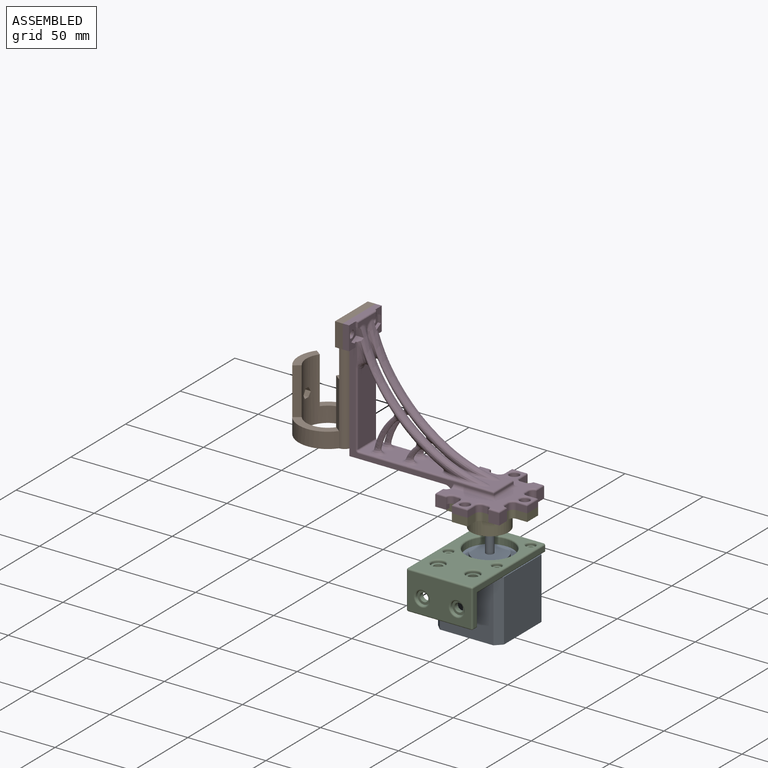
[diagram: assembled view]
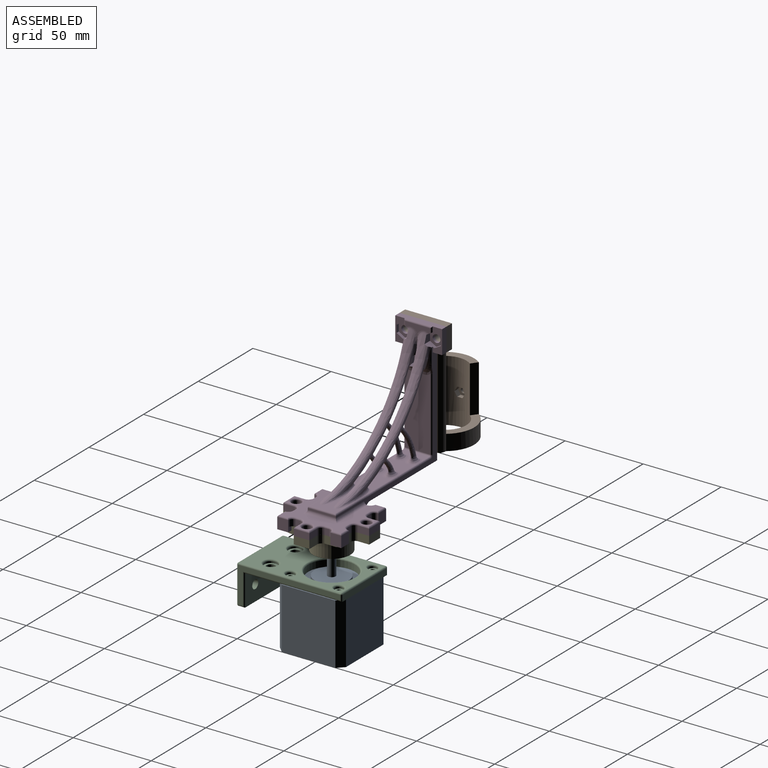
[diagram: assembled view, second angle]
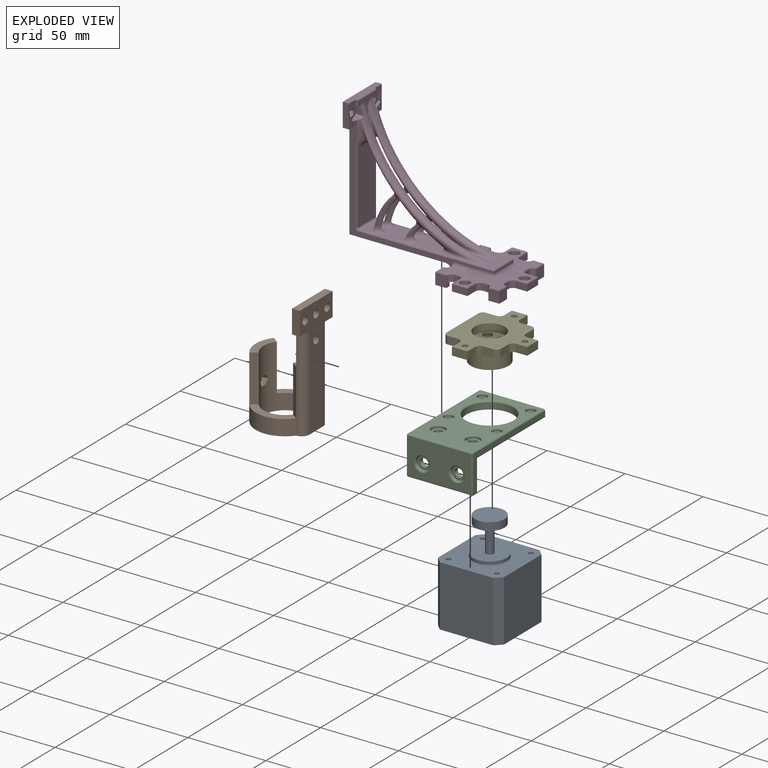
[diagram: exploded view]
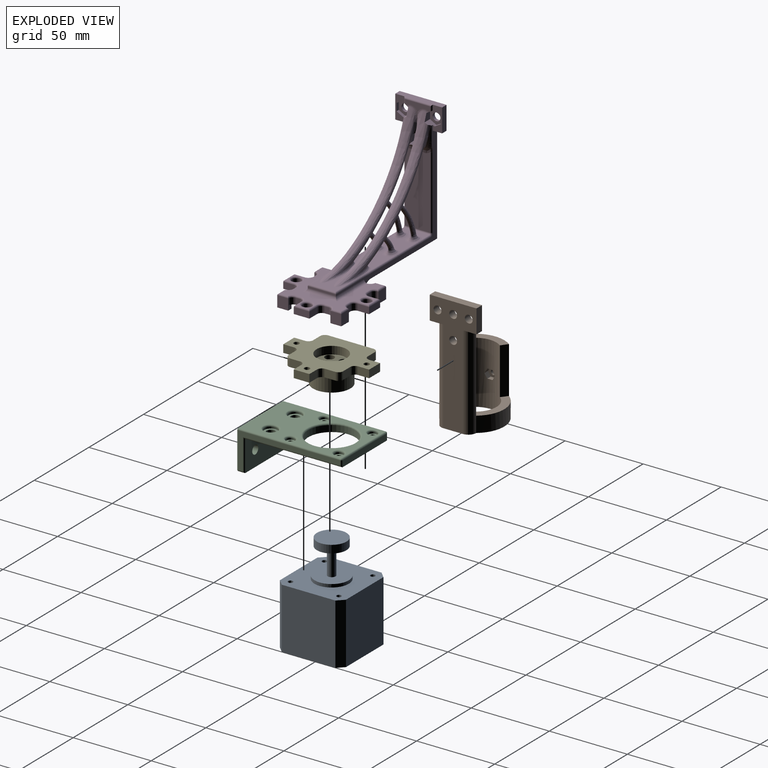
[diagram: exploded view, second angle]
ASSEMBLY  parts=5 mates=4
PART A: 24 faces, bbox 42.3x42.3x63 mm
  f0: cylinder r=2.5mm len=17mm, axis (0,0,-1), area 267mm2, adj f12,f14
  f1: plane 39x34.3mm, normal (0,-1,0), area 1337.7mm2, adj f5,f6,f9,f10
  f2: plane 39x34.3mm, normal (1,0,0), area 1337.7mm2, adj f5,f6,f8,f9
  f3: plane 39x34.3mm, normal (0,1,0), area 1337.7mm2, adj f5,f6,f7,f8
  f4: plane 39x34.3mm, normal (-1,0,0), area 1337.7mm2, adj f5,f6,f7,f10
  f5: plane 42.3x42.3mm, normal (0,0,1), area 1348.9mm2, adj f1,f2,f3,f4,f7,f8,f9,f10
  f6: plane 42.3x42.3mm, normal (0,0,-1), area 1757.3mm2, adj f1,f2,f3,f4,f7,f8,f9,f10
  f7: plane 39x4mm, normal (-0.71,0.71,0), area 220.6mm2, adj f3,f4,f5,f6
  f8: plane 39x4mm, normal (0.71,0.71,0), area 220.6mm2, adj f2,f3,f5,f6
  f9: plane 39x4mm, normal (0.71,-0.71,0), area 220.6mm2, adj f1,f2,f5,f6
  f10: plane 39x4mm, normal (-0.71,-0.71,0), area 220.6mm2, adj f1,f4,f5,f6
  f11: cylinder r=11mm len=22mm, axis (0,0,-1), area 138.2mm2, adj f5,f12
  f12: plane 22x22mm, normal (0,0,1), area 360.5mm2, adj f0,f11
  f13: cylinder r=9.5mm len=19mm, axis (0,0,1), area 298.5mm2, adj f14,f15
  f14: plane 19x19mm, normal (0,0,-1), area 263.9mm2, adj f0,f13
  f15: plane 19x19mm, normal (0,0,1), area 283.5mm2, adj f13
  f16: cylinder r=1.5mm len=4.5mm, axis (0,0,1), area 42.4mm2, adj f5,f17
  f17: plane 3x3mm, normal (0,0,1), area 7.1mm2, adj f16
  f18: cylinder r=1.5mm len=4.5mm, axis (0,0,1), area 42.4mm2, adj f5,f19
  f19: plane 3x3mm, normal (0,0,1), area 7.1mm2, adj f18
  f20: cylinder r=1.5mm len=4.5mm, axis (0,0,1), area 42.4mm2, adj f5,f21
  f21: plane 3x3mm, normal (0,0,1), area 7.1mm2, adj f20
  f22: cylinder r=1.5mm len=4.5mm, axis (0,0,1), area 42.4mm2, adj f5,f23
  f23: plane 3x3mm, normal (0,0,1), area 7.1mm2, adj f22
PART B: 32 faces, bbox 38.8x75x37.5 mm
  f0: cylinder r=18.75mm len=40mm, axis (0,1,0), area 1652.7mm2, adj f3,f4,f5,f7,f9,f10,f11,f30
  f1: plane 22.5x4mm, normal (0,-1,0), area 47.1mm2, adj f2,f6,f8,f28
  f2: cylinder r=13.75mm len=40mm, axis (0,1,0), area 1896.4mm2, adj f1,f3,f4,f5,f6,f7,f8,f9
  f3: plane 22.5x7.75mm, normal (0,-1,0), area 104.6mm2, adj f0,f2,f5,f9
  f4: plane 38.75x37.5mm, normal (0,1,0), area 554.8mm2, adj f0,f2,f29,f30,f31
  f5: plane 30x4mm, normal (0.6,0,-0.8), area 150mm2, adj f0,f2,f3,f7
  f6: plane 30x4mm, normal (-0.6,0,-0.8), area 150mm2, adj f1,f2,f7,f31
  f7: plane 30x10.5mm, normal (0,-1,0), area 150.7mm2, adj f0,f2,f5,f6
  f8: plane 30x4mm, normal (-0.6,0,0.8), area 150mm2, adj f1,f2,f10,f30
  f9: plane 30x4mm, normal (0.6,0,0.8), area 150mm2, adj f0,f2,f3,f10
  f10: plane 30x10.5mm, normal (0,-1,0), area 150.7mm2, adj f0,f2,f8,f9
  f11: cylinder r=1.6mm len=3.2mm, axis (1,0,0), area 19.8mm2, adj f0,f18
  f12: plane 3.43x2.92mm, normal (0,0.5,0.87), area 10.9mm2, adj f2,f13,f17,f18
  f13: plane 3.43x2.92mm, normal (0,-0.5,0.87), area 10.9mm2, adj f2,f12,f14,f18
  f14: plane 3.35x3.1mm, normal (0,-1,0), area 10.2mm2, adj f2,f13,f15,f18
  f15: plane 3.43x2.92mm, normal (0,-0.5,-0.87), area 10.9mm2, adj f2,f14,f16,f18
  f16: plane 3.43x2.92mm, normal (0,0.5,-0.87), area 10.9mm2, adj f2,f15,f17,f18
  f17: plane 3.35x3.1mm, normal (0,1,0), area 10.2mm2, adj f2,f12,f16,f18
  f18: plane 6.7x5.8mm, normal (1,0,0), area 21.1mm2, adj f11,f12,f13,f14,f15,f16,f17
  f19: plane 30x5mm, normal (0,-1,0), area 150mm2, adj f20,f27,f28,f29
  f20: plane 15x5mm, normal (0,0,-1), area 75mm2, adj f19,f21,f28,f29
  f21: plane 8.75x5mm, normal (0,1,0), area 24.1mm2, adj f20,f28,f29,f31
  f22: plane 8.75x5mm, normal (0,1,0), area 24.1mm2, adj f27,f28,f29,f30
  f23: cylinder r=2.5mm len=5mm, axis (1,0,0), area 78.5mm2, adj f28,f29
  f24: cylinder r=2.5mm len=5mm, axis (1,0,0), area 78.5mm2, adj f28,f29
  f25: cylinder r=2.5mm len=5mm, axis (1,0,0), area 78.5mm2, adj f28,f29
  f26: cylinder r=2.5mm len=5mm, axis (1,0,0), area 78.5mm2, adj f28,f29
  f27: plane 15x5mm, normal (0,0,1), area 75mm2, adj f19,f22,f28,f29
  f28: plane 35x30mm, normal (-1,0,0), area 821.5mm2, adj f1,f19,f20,f21,f22,f23,f24,f25
  f29: plane 75x30mm, normal (1,0,0), area 1121.5mm2, adj f4,f19,f20,f21,f22,f23,f24,f25
  f30: cylinder r=5mm len=60mm, axis (0,-1,0), area 471.2mm2, adj f0,f4,f8,f22,f28,f29
  f31: cylinder r=5mm len=60mm, axis (0,1,0), area 471.2mm2, adj f0,f4,f6,f21,f28,f29
PART C: 63 faces, bbox 42.3x67.3x25 mm
  f0: cylinder r=2.75mm len=5.5mm, axis (0,-1,0), area 51.8mm2, adj f15,f32
  f1: cylinder r=2.75mm len=5.5mm, axis (0,-1,0), area 51.8mm2, adj f15,f30
  f2: cylinder r=1.7mm len=3.4mm, axis (0,0,-1), area 32mm2, adj f9,f18
  f3: cylinder r=1.7mm len=3.4mm, axis (0,0,-1), area 32mm2, adj f9,f28
  f4: cylinder r=1.7mm len=3.4mm, axis (0,0,-1), area 32mm2, adj f9,f20
  f5: cylinder r=2.75mm len=5.5mm, axis (0,0,-1), area 51.8mm2, adj f9,f24
  f6: cylinder r=2.75mm len=5.5mm, axis (0,0,-1), area 51.8mm2, adj f9,f26
  f7: cylinder r=1.7mm len=3.4mm, axis (0,0,-1), area 32mm2, adj f9,f22
  f8: plane 65.3x40.3mm, normal (0,0,1), area 1467.9mm2, adj f35,f36,f37,f38,f39,f40,f45,f46
  f9: plane 62.3x40.3mm, normal (0,0,-1), area 1720mm2, adj f2,f3,f4,f5,f6,f7,f13,f14
  f10: plane 65.3x23mm, normal (-1,0,0), area 255.9mm2, adj f53,f54,f58,f59,f60,f61
  f11: plane 40.3x23mm, normal (0,-1,0), area 753.7mm2, adj f33,f34,f46,f47,f54,f55
  f12: plane 65.3x23mm, normal (1,0,0), area 255.9mm2, adj f41,f43,f44,f45,f47,f48
  f13: cylinder r=15mm len=30mm, axis (0,0,-1), area 377mm2, adj f9,f62
  f14: plane 40.3x4mm, normal (0,1,0), area 161.2mm2, adj f9,f44,f52,f58
  f15: plane 40.3x20mm, normal (0,1,0), area 758.5mm2, adj f0,f1,f9,f16,f43,f61
  f16: plane 40.3x4mm, normal (0,0,-1), area 161.2mm2, adj f15,f48,f55,f59
  f17: cylinder r=2.85mm len=5.7mm, axis (0,0,1), area 17.9mm2, adj f18,f40
  f18: plane 5.7x5.7mm, normal (0,0,1), area 16.4mm2, adj f2,f17
  f19: cylinder r=2.85mm len=5.7mm, axis (0,0,1), area 17.9mm2, adj f20,f35
  f20: plane 5.7x5.7mm, normal (0,0,1), area 16.4mm2, adj f4,f19
  f21: cylinder r=2.85mm len=5.7mm, axis (0,0,1), area 17.9mm2, adj f22,f36
  f22: plane 5.7x5.7mm, normal (0,0,1), area 16.4mm2, adj f7,f21
  f23: cylinder r=4.25mm len=8.5mm, axis (0,0,1), area 26.7mm2, adj f24,f37
  f24: plane 8.5x8.5mm, normal (0,0,1), area 33mm2, adj f5,f23
  f25: cylinder r=4.25mm len=8.5mm, axis (0,0,1), area 26.7mm2, adj f26,f38
  f26: plane 8.5x8.5mm, normal (0,0,1), area 33mm2, adj f6,f25
  f27: cylinder r=2.85mm len=5.7mm, axis (0,0,1), area 17.9mm2, adj f28,f39
  f28: plane 5.7x5.7mm, normal (0,0,1), area 16.4mm2, adj f3,f27
  f29: cylinder r=4.25mm len=8.5mm, axis (0,-1,0), area 26.7mm2, adj f30,f34
  f30: plane 8.5x8.5mm, normal (0,-1,0), area 33mm2, adj f1,f29
  f31: cylinder r=4.25mm len=8.5mm, axis (0,-1,0), area 26.7mm2, adj f32,f33
  f32: plane 8.5x8.5mm, normal (0,-1,0), area 33mm2, adj f0,f31
  f33: torus R=5.25mm, axis (0,1,0), area 45.5mm2, adj f11,f31
  f34: torus R=5.25mm, axis (0,1,0), area 45.5mm2, adj f11,f29
  f35: torus R=3.85mm, axis (0,0,1), area 31.7mm2, adj f8,f19
  f36: torus R=3.85mm, axis (0,0,1), area 31.7mm2, adj f8,f21
  f37: torus R=5.25mm, axis (0,0,1), area 45.5mm2, adj f8,f23
  f38: torus R=5.25mm, axis (0,0,1), area 45.5mm2, adj f8,f25
  f39: torus R=3.85mm, axis (0,0,1), area 31.7mm2, adj f8,f27
  f40: torus R=3.85mm, axis (0,0,1), area 31.7mm2, adj f8,f17
  f41: cylinder r=1mm len=63.3mm, axis (0,1,0), area 97.9mm2, adj f9,f12,f43,f44
  f42: sphere r=1mm, area 1.6mm2, adj f45,f46,f47
  f43: cylinder r=1mm len=21mm, axis (0,0,-1), area 31.4mm2, adj f12,f15,f41,f48
  f44: cylinder r=1mm len=4mm, axis (0,0,-1), area 5.7mm2, adj f12,f14,f41,f49
  f45: cylinder r=1mm len=65.3mm, axis (0,-1,0), area 102.6mm2, adj f8,f12,f42,f49
  f46: cylinder r=1mm len=40.3mm, axis (-1,0,0), area 63.3mm2, adj f8,f11,f42,f50
  f47: cylinder r=1mm len=23mm, axis (0,0,1), area 36.1mm2, adj f11,f12,f42,f51
  f48: cylinder r=1mm len=4mm, axis (0,1,0), area 5.7mm2, adj f12,f16,f43,f51
  f49: sphere r=1mm, area 1.6mm2, adj f44,f45,f52
  f50: sphere r=1mm, area 1.6mm2, adj f46,f53,f54
  f51: sphere r=1mm, area 1.6mm2, adj f47,f48,f55
  f52: cylinder r=1mm len=40.3mm, axis (1,0,0), area 63.3mm2, adj f8,f14,f49,f56
  f53: cylinder r=1mm len=65.3mm, axis (0,1,0), area 102.6mm2, adj f8,f10,f50,f56
  f54: cylinder r=1mm len=23mm, axis (0,0,-1), area 36.1mm2, adj f10,f11,f50,f57
  f55: cylinder r=1mm len=40.3mm, axis (1,0,0), area 63.3mm2, adj f11,f16,f51,f57
  f56: sphere r=1mm, area 1.6mm2, adj f52,f53,f58
  f57: sphere r=1mm, area 1.6mm2, adj f54,f55,f59
  f58: cylinder r=1mm len=4mm, axis (0,0,1), area 5.7mm2, adj f10,f14,f56,f60
  f59: cylinder r=1mm len=4mm, axis (0,-1,0), area 5.7mm2, adj f10,f16,f57,f61
  f60: cylinder r=1mm len=63.3mm, axis (0,-1,0), area 97.9mm2, adj f9,f10,f58,f61
  f61: cylinder r=1mm len=21mm, axis (0,0,1), area 31.4mm2, adj f10,f15,f59,f60
  f62: torus R=16mm, axis (0,0,1), area 151.6mm2, adj f8,f13
PART D: 220 faces, bbox 111.8x55.9x87.7 mm
  f0: plane 4x4mm, normal (0,0,1), area 3.4mm2, adj f196,f197,f217
  f1: plane 45x42mm, normal (0,0,1), area 684.3mm2, adj f104,f105,f106,f178,f179,f180,f181,f182
  f2: plane 4x4mm, normal (0,0,1), area 3.4mm2, adj f206,f207,f219
  f3: plane 4x4mm, normal (0,0,1), area 3.4mm2, adj f207,f208,f219
  f4: plane 4x4mm, normal (0,0,1), area 3.4mm2, adj f195,f196,f217
  f5: plane 4x4mm, normal (0,0,1), area 3.4mm2, adj f185,f186,f218
  f6: plane 4.76x1.5mm, normal (-1,0,0), area 6.5mm2, adj f7,f35,f85,f216
  f7: plane 92.93x72.6mm, normal (0,-1,0), area 489.7mm2, adj f6,f10,f17,f19,f102,f103,f104,f125
  f8: bspline ~82.12x71mm, area 1417.8mm2, adj f9,f10,f24,f25,f28,f29,f109,f116
  f9: bspline ~25.26x11.43mm, area 93.3mm2, adj f8,f10,f11,f12,f13,f125,f152,f154
  f10: bspline ~16.78x7.87mm, area 58.3mm2, adj f7,f8,f9,f125,f165
  f11: plane 47.05x16.01mm, normal (1,0,0), area 734.1mm2, adj f9,f13,f124,f128,f129,f152,f159
  f12: plane 16x5.11mm, normal (1,0,0), area 48.3mm2, adj f9,f13,f14,f145,f146,f164,f174
  f13: bspline ~25.26x11.43mm, area 93.4mm2, adj f9,f11,f12,f20,f108,f123,f153,f156
  f14: cylinder r=1mm len=3.86mm, axis (0,0,-1), area 4.8mm2, adj f12,f17,f145,f164
  f15: cylinder r=2.5mm len=5mm, axis (-1,0,0), area 31.4mm2, adj f19,f168
  f16: cylinder r=2.5mm len=5mm, axis (-1,0,0), area 31.4mm2, adj f19,f167
  f17: plane 15x6mm, normal (1,0,0), area 51.2mm2, adj f7,f14,f107,f150,f151,f161,f162,f163
  f18: cylinder r=2.5mm len=5mm, axis (-1,0,0), area 31.4mm2, adj f19,f157
  f19: plane 79x30mm, normal (-1,0,0), area 1543.1mm2, adj f7,f15,f16,f18,f21,f102,f107,f147
  f20: bspline ~16.5x7.9mm, area 58.3mm2, adj f13,f21,f108,f123,f173
  f21: plane 92.93x72.6mm, normal (0,1,0), area 489.7mm2, adj f19,f20,f59,f102,f103,f106,f123,f124
  f22: bspline ~4.53x2.67mm, area 6mm2, adj f23,f108,f111,f122
  f23: bspline ~4.53x2.67mm, area 5.9mm2, adj f22,f108,f111,f122
  f24: bspline ~4.53x2.67mm, area 6mm2, adj f8,f25,f113,f118
  f25: bspline ~4.53x2.67mm, area 5.9mm2, adj f8,f24,f113,f118
  f26: bspline ~6.12x3.3mm, area 3.2mm2, adj f27,f30,f108,f110
  f27: bspline ~6.12x3.3mm, area 3.2mm2, adj f26,f30,f108,f110
  f28: bspline ~6.12x3.3mm, area 3.2mm2, adj f8,f29,f30,f109
  f29: bspline ~6.12x3.3mm, area 3.2mm2, adj f8,f28,f30,f109
  f30: plane 85.63x16.02mm, normal (0,0,1), area 712.2mm2, adj f26,f27,f28,f29,f109,f110,f115,f117
  f31: plane 4x4mm, normal (0,0,1), area 3.4mm2, adj f184,f185,f218
  f32: cylinder r=1.75mm len=3.5mm, axis (0,0,-1), area 11mm2, adj f35,f101
  f33: cylinder r=1.75mm len=3.5mm, axis (0,0,-1), area 11mm2, adj f35,f96
  f34: cylinder r=1.75mm len=3.5mm, axis (0,0,-1), area 11mm2, adj f35,f98
  f35: plane 55x48mm, normal (0,0,-1), area 1236.7mm2, adj f6,f32,f33,f34,f36,f37,f40,f41
  f36: plane 4x2.5mm, normal (0,-1,0), area 10mm2, adj f35,f88,f89,f204
  f37: plane 3x3mm, normal (-1,0,0), area 9mm2, adj f35,f38,f72,f73
  f38: plane 7x7mm, normal (0,-1,0), area 49mm2, adj f37,f39,f73,f89,f202
  f39: plane 7x7mm, normal (1,0,0), area 49mm2, adj f38,f40,f73,f90,f201
  f40: plane 3x3mm, normal (0,1,0), area 9mm2, adj f35,f39,f71,f73
  f41: plane 4x2.5mm, normal (1,0,0), area 10mm2, adj f35,f90,f91,f199
  f42: plane 7x4mm, normal (0,-1,0), area 28mm2, adj f35,f43,f91,f197
  f43: plane 10x4mm, normal (1,0,0), area 40mm2, adj f35,f42,f44,f196
  f44: plane 7x4mm, normal (0,1,0), area 28mm2, adj f35,f43,f92,f195
  f45: plane 4x2.5mm, normal (1,0,0), area 10mm2, adj f35,f92,f93,f193
  f46: plane 3x3mm, normal (0,-1,0), area 9mm2, adj f35,f47,f69,f70
  f47: plane 7x7mm, normal (1,0,0), area 49mm2, adj f46,f48,f70,f93,f191
  f48: plane 7x7mm, normal (0,1,0), area 49mm2, adj f47,f49,f70,f94,f190
  f49: plane 3x3mm, normal (-1,0,0), area 9mm2, adj f35,f48,f68,f70
  f50: plane 4x2.5mm, normal (0,1,0), area 10mm2, adj f35,f94,f95,f188
  f51: plane 7x4mm, normal (1,0,0), area 28mm2, adj f35,f52,f95,f186
  f52: plane 10x4mm, normal (0,1,0), area 40mm2, adj f35,f51,f53,f185
  f53: plane 7x4mm, normal (-1,0,0), area 28mm2, adj f35,f52,f82,f184
  f54: plane 4x2.5mm, normal (0,1,0), area 10mm2, adj f35,f82,f83,f182
  f55: plane 3x3mm, normal (1,0,0), area 9mm2, adj f35,f56,f74,f76
  f56: plane 7x7mm, normal (0,1,0), area 49mm2, adj f55,f57,f76,f83,f180
  f57: plane 7x7mm, normal (-1,0,0), area 49mm2, adj f56,f58,f76,f84,f179
  f58: plane 3x3mm, normal (0,-1,0), area 9mm2, adj f35,f57,f75,f76
  f59: plane 4.76x1.5mm, normal (-1,0,0), area 6.5mm2, adj f21,f35,f84,f176
  f60: plane 3x3mm, normal (0,1,0), area 9mm2, adj f35,f61,f77,f79
  f61: plane 7x7mm, normal (-1,0,0), area 49mm2, adj f60,f62,f79,f85,f213
  f62: plane 7x7mm, normal (0,-1,0), area 49mm2, adj f61,f63,f79,f86,f212
  f63: plane 3x3mm, normal (1,0,0), area 9mm2, adj f35,f62,f78,f79
  f64: plane 4x2.5mm, normal (0,-1,0), area 10mm2, adj f35,f86,f87,f210
  f65: plane 7x4mm, normal (-1,0,0), area 28mm2, adj f35,f66,f87,f208
  f66: plane 10x4mm, normal (0,-1,0), area 40mm2, adj f35,f65,f67,f207
  f67: plane 7x4mm, normal (1,0,0), area 28mm2, adj f35,f66,f88,f206
  f68: plane 4x3mm, normal (0,-1,0), area 12mm2, adj f35,f49,f69,f70
  f69: plane 4x3mm, normal (-1,0,0), area 12mm2, adj f35,f46,f68,f70
  f70: plane 7x7mm, normal (0,0,-1), area 33mm2, adj f46,f47,f48,f49,f68,f69
  f71: plane 4x3mm, normal (-1,0,0), area 12mm2, adj f35,f40,f72,f73
  f72: plane 4x3mm, normal (0,1,0), area 12mm2, adj f35,f37,f71,f73
  f73: plane 7x7mm, normal (0,0,-1), area 33mm2, adj f37,f38,f39,f40,f71,f72
  f74: plane 4x3mm, normal (0,-1,0), area 12mm2, adj f35,f55,f75,f76
  f75: plane 4x3mm, normal (1,0,0), area 12mm2, adj f35,f58,f74,f76
  f76: plane 7x7mm, normal (0,0,-1), area 33mm2, adj f55,f56,f57,f58,f74,f75
  f77: plane 4x3mm, normal (1,0,0), area 12mm2, adj f35,f60,f78,f79
  f78: plane 4x3mm, normal (0,1,0), area 12mm2, adj f35,f63,f77,f79
  f79: plane 7x7mm, normal (0,0,-1), area 33mm2, adj f60,f61,f62,f63,f77,f78
  f80: cylinder r=9.55mm len=19.1mm, axis (0,0,1), area 180mm2, adj f35,f81
  f81: plane 19.1x19.1mm, normal (0,0,-1), area 286.5mm2, adj f80
  f82: cylinder r=3mm len=4mm, axis (0,0,-1), area 18.8mm2, adj f35,f53,f54,f183
  f83: cylinder r=3mm len=4mm, axis (0,0,1), area 18.8mm2, adj f35,f54,f56,f181
  f84: cylinder r=3mm len=4.04mm, axis (0,0,-1), area 18.9mm2, adj f35,f57,f59,f177,f178
  f85: cylinder r=3mm len=4.04mm, axis (0,0,1), area 18.9mm2, adj f6,f35,f61,f214,f215
  f86: cylinder r=3mm len=4mm, axis (0,0,1), area 18.8mm2, adj f35,f62,f64,f211
  f87: cylinder r=3mm len=4mm, axis (0,0,-1), area 18.8mm2, adj f35,f64,f65,f209
  f88: cylinder r=3mm len=4mm, axis (0,0,1), area 18.8mm2, adj f35,f36,f67,f205
  f89: cylinder r=3mm len=4mm, axis (0,0,-1), area 18.8mm2, adj f35,f36,f38,f203
  f90: cylinder r=3mm len=4mm, axis (0,0,1), area 18.8mm2, adj f35,f39,f41,f200
  f91: cylinder r=3mm len=4mm, axis (0,0,1), area 18.8mm2, adj f35,f41,f42,f198
  f92: cylinder r=3mm len=4mm, axis (0,0,1), area 18.8mm2, adj f35,f44,f45,f194
  f93: cylinder r=3mm len=4mm, axis (0,0,-1), area 18.8mm2, adj f35,f45,f47,f192
  f94: cylinder r=3mm len=4mm, axis (0,0,-1), area 18.8mm2, adj f35,f48,f50,f189
  f95: cylinder r=3mm len=4mm, axis (0,0,1), area 18.8mm2, adj f35,f50,f51,f187
  f96: plane 6x6mm, normal (0,0,1), area 18.7mm2, adj f33,f97
  f97: cylinder r=3mm len=6mm, axis (0,0,1), area 56.5mm2, adj f96,f217
  f98: plane 6x6mm, normal (0,0,1), area 18.7mm2, adj f34,f99
  f99: cylinder r=3mm len=6mm, axis (0,0,1), area 56.5mm2, adj f98,f218
  f100: cylinder r=3mm len=6mm, axis (0,0,1), area 56.5mm2, adj f101,f219
  f101: plane 6x6mm, normal (0,0,1), area 18.7mm2, adj f32,f100
  f102: plane 61.12x18mm, normal (0,0,-1), area 1100.2mm2, adj f7,f19,f21,f175
  f103: plane 18x1mm, normal (1,0,0), area 18mm2, adj f7,f21,f105,f142
  f104: cylinder r=2mm len=27.53mm, axis (1,0,0), area 82.4mm2, adj f1,f7,f105,f215,f216
  f105: cylinder r=2mm len=22mm, axis (0,1,0), area 62.8mm2, adj f1,f103,f104,f106
  f106: cylinder r=2mm len=27.53mm, axis (-1,0,0), area 82.4mm2, adj f1,f21,f105,f176,f177
  f107: plane 30x4mm, normal (0,0,1), area 120mm2, adj f17,f19,f145,f147,f149,f151
  f108: bspline ~82.12x71mm, area 1417.8mm2, adj f13,f20,f22,f23,f26,f27,f110,f120
  f109: bspline ~31.06x8.58mm, area 128.6mm2, adj f8,f28,f29,f30,f143
  f110: bspline ~31.06x8.58mm, area 128.6mm2, adj f26,f27,f30,f108,f138
  f111: bspline ~14.84x13.18mm, area 72.8mm2, adj f22,f23,f121,f122
  f112: bspline ~21.47x16.02mm, area 207.2mm2, adj f119,f120
  f113: bspline ~14.84x13.18mm, area 72.8mm2, adj f24,f25,f117,f118
  f114: bspline ~21.47x16.02mm, area 207.2mm2, adj f115,f116
  f115: bspline ~10.16x8mm, area 79.2mm2, adj f30,f114,f135
  f116: bspline ~6.48x6.08mm, area 44mm2, adj f8,f114
  f117: bspline ~10.64x8.01mm, area 82mm2, adj f30,f113,f139
  f118: bspline ~5.94x5.07mm, area 28.6mm2, adj f8,f24,f25,f113
  f119: bspline ~10.16x8mm, area 79.2mm2, adj f30,f112,f130
  f120: bspline ~6.48x6.08mm, area 44mm2, adj f108,f112
  f121: bspline ~10.64x8.01mm, area 82mm2, adj f30,f111,f134
  f122: bspline ~5.94x5.07mm, area 28.6mm2, adj f22,f23,f108,f111
  f123: bspline ~7.66x1.99mm, area 4.8mm2, adj f13,f20,f21,f124
  f124: cylinder r=1mm len=46.65mm, axis (0,0,-1), area 73.3mm2, adj f11,f21,f123,f126
  f125: bspline ~7.66x1.99mm, area 4.8mm2, adj f7,f9,f10,f128
  f126: torus R=2mm, axis (0,1,0), area 3.4mm2, adj f21,f124,f127,f129
  f127: cylinder r=1mm len=6.64mm, axis (1,0,0), area 10.4mm2, adj f21,f30,f126,f130
  f128: cylinder r=1mm len=46.65mm, axis (0,0,-1), area 73.3mm2, adj f7,f11,f125,f131
  f129: cylinder r=1mm len=16mm, axis (0,1,0), area 25.1mm2, adj f11,f30,f126,f131
  f130: bspline ~8.44x1.25mm, area 7.6mm2, adj f21,f119,f127,f132
  f131: torus R=2mm, axis (0,-1,0), area 3.4mm2, adj f7,f128,f129,f133
  f132: cylinder r=1mm len=15.37mm, axis (1,0,0), area 24.1mm2, adj f21,f30,f130,f134
  f133: cylinder r=1mm len=6.64mm, axis (-1,0,0), area 10.4mm2, adj f7,f30,f131,f135
  f134: bspline ~8.64x1.24mm, area 7.9mm2, adj f21,f121,f132,f136
  f135: bspline ~8.44x1.25mm, area 7.6mm2, adj f7,f115,f133,f137
  f136: cylinder r=1mm len=23.12mm, axis (1,0,0), area 36.3mm2, adj f21,f30,f134,f138
  f137: cylinder r=1mm len=15.37mm, axis (-1,0,0), area 24.1mm2, adj f7,f30,f135,f139
  f138: bspline ~20.37x1.13mm, area 24.1mm2, adj f21,f110,f136,f140
  f139: bspline ~8.64x1.24mm, area 7.9mm2, adj f7,f117,f137,f141
  f140: cylinder r=1mm len=13.35mm, axis (1,0,0), area 20.2mm2, adj f21,f30,f138,f142
  f141: cylinder r=1mm len=23.12mm, axis (-1,0,0), area 36.3mm2, adj f7,f30,f139,f143
  f142: cylinder r=1mm len=18mm, axis (0,-1,0), area 26.7mm2, adj f30,f103,f140,f144
  f143: bspline ~20.59x1.13mm, area 24.1mm2, adj f7,f109,f141,f144
  f144: cylinder r=1mm len=13.35mm, axis (-1,0,0), area 20.2mm2, adj f7,f30,f142,f143
  f145: cylinder r=1mm len=18mm, axis (0,-1,0), area 26.7mm2, adj f12,f14,f107,f146
  f146: cylinder r=1mm len=3.86mm, axis (0,0,-1), area 4.8mm2, adj f12,f145,f149,f174
  f147: plane 15x4mm, normal (0,1,0), area 60mm2, adj f19,f107,f148,f149
  f148: plane 6x4mm, normal (0,0,-1), area 24mm2, adj f19,f21,f147,f149
  f149: plane 15x6mm, normal (1,0,0), area 51.2mm2, adj f21,f107,f146,f147,f148,f169,f170,f171
  f150: plane 6x4mm, normal (0,0,-1), area 24mm2, adj f7,f17,f19,f151
  f151: plane 15x4mm, normal (0,-1,0), area 60mm2, adj f17,f19,f107,f150
  f152: plane 6.72x4.87mm, normal (0,0.5,0.87), area 18.4mm2, adj f9,f11,f155,f157,f158,f159
  f153: plane 6.2x4.35mm, normal (0,-0.5,-0.87), area 27.1mm2, adj f13,f154,f156,f157,f160
  f154: plane 6.2x4.35mm, normal (0,0.5,-0.87), area 27.1mm2, adj f9,f153,f155,f157,f158
  f155: plane 6.75x3.06mm, normal (-1,0,0), area 12.8mm2, adj f9,f152,f154,f158
  f156: plane 6.75x3.06mm, normal (-1,0,0), area 12.8mm2, adj f13,f153,f159,f160
  f157: plane 9.58x8.3mm, normal (1,0,0), area 40mm2, adj f18,f152,f153,f154,f158,f159,f160
  f158: plane 6x4.79mm, normal (0,1,0), area 28.8mm2, adj f152,f154,f155,f157
  f159: plane 6.72x4.87mm, normal (0,-0.5,0.87), area 18.4mm2, adj f11,f13,f152,f156,f157,f160
  f160: plane 6x4.79mm, normal (0,-1,0), area 28.8mm2, adj f153,f156,f157,f159
  f161: plane 4.15x2.4mm, normal (0,0.5,-0.87), area 9.6mm2, adj f17,f162,f164,f167
  f162: plane 4.79x2mm, normal (0,1,0), area 9.6mm2, adj f17,f161,f163,f167
  f163: plane 4.15x2.4mm, normal (0,0.5,0.87), area 9.6mm2, adj f17,f162,f165,f167
  f164: plane 4.39x3.54mm, normal (0,-0.5,-0.87), area 13.1mm2, adj f8,f9,f12,f14,f17,f161,f166,f167
  f165: plane 5.17x4.3mm, normal (0,-0.5,0.87), area 18.6mm2, adj f7,f8,f10,f17,f163,f166,f167
  f166: plane 5.02x4.79mm, normal (0,-1,0), area 19.9mm2, adj f8,f164,f165,f167
  f167: plane 9.58x8.3mm, normal (1,0,0), area 40mm2, adj f16,f161,f162,f163,f164,f165,f166
  f168: plane 9.58x8.3mm, normal (1,0,0), area 40mm2, adj f15,f169,f170,f171,f172,f173,f174
  f169: plane 4.15x2.4mm, normal (0,-0.5,0.87), area 9.6mm2, adj f149,f168,f170,f173
  f170: plane 4.79x2mm, normal (0,-1,0), area 9.6mm2, adj f149,f168,f169,f171
  f171: plane 4.15x2.4mm, normal (0,-0.5,-0.87), area 9.6mm2, adj f149,f168,f170,f174
  f172: plane 5.02x4.79mm, normal (0,1,0), area 19.9mm2, adj f108,f168,f173,f174
  f173: plane 5.17x4.3mm, normal (0,0.5,0.87), area 18.6mm2, adj f20,f21,f108,f149,f168,f169,f172
  f174: plane 4.39x3.54mm, normal (0,0.5,-0.87), area 13.1mm2, adj f12,f13,f108,f146,f149,f168,f171,f172
  f175: cylinder r=5mm len=18mm, axis (0,1,0), area 141.4mm2, adj f7,f21,f35,f102
  f176: torus R=3mm, axis (1,0,0), area 3.5mm2, adj f21,f59,f106,f177
  f177: bspline ~1.13x1.04mm, area 0.5mm2, adj f84,f106,f176,f178
  f178: torus R=4mm, axis (0,0,1), area 6.9mm2, adj f1,f84,f177,f179
  f179: cylinder r=1mm len=7mm, axis (0,1,0), area 9.5mm2, adj f1,f57,f178,f180
  f180: cylinder r=1mm len=7mm, axis (1,0,0), area 9.5mm2, adj f1,f56,f179,f181
  f181: torus R=4mm, axis (0,0,1), area 7.6mm2, adj f1,f83,f180,f182
  f182: cylinder r=1mm len=2.5mm, axis (1,0,0), area 3.9mm2, adj f1,f54,f181,f183
  f183: torus R=4mm, axis (0,0,1), area 8.3mm2, adj f1,f82,f182,f184
  f184: cylinder r=1mm len=7mm, axis (0,1,0), area 10.2mm2, adj f1,f31,f53,f183,f185
  f185: cylinder r=1mm len=10mm, axis (1,0,0), area 14.1mm2, adj f5,f31,f52,f184,f186
  f186: cylinder r=1mm len=7mm, axis (0,-1,0), area 10.2mm2, adj f1,f5,f51,f185,f187
  f187: torus R=4mm, axis (0,0,1), area 8.3mm2, adj f1,f95,f186,f188
  f188: cylinder r=1mm len=2.5mm, axis (1,0,0), area 3.9mm2, adj f1,f50,f187,f189
  f189: torus R=4mm, axis (0,0,1), area 7.6mm2, adj f1,f94,f188,f190
  f190: cylinder r=1mm len=7mm, axis (1,0,0), area 9.5mm2, adj f1,f48,f189,f191
  f191: cylinder r=1mm len=7mm, axis (0,-1,0), area 9.5mm2, adj f1,f47,f190,f192
  f192: torus R=4mm, axis (0,0,1), area 7.6mm2, adj f1,f93,f191,f193
  f193: cylinder r=1mm len=2.5mm, axis (0,-1,0), area 3.9mm2, adj f1,f45,f192,f194
  f194: torus R=4mm, axis (0,0,1), area 8.3mm2, adj f1,f92,f193,f195
  f195: cylinder r=1mm len=7mm, axis (1,0,0), area 10.2mm2, adj f1,f4,f44,f194,f196
  f196: cylinder r=1mm len=10mm, axis (0,-1,0), area 14.1mm2, adj f0,f4,f43,f195,f197
  f197: cylinder r=1mm len=7mm, axis (-1,0,0), area 10.2mm2, adj f0,f1,f42,f196,f198
  f198: torus R=4mm, axis (0,0,1), area 8.3mm2, adj f1,f91,f197,f199
  f199: cylinder r=1mm len=2.5mm, axis (0,-1,0), area 3.9mm2, adj f1,f41,f198,f200
  f200: torus R=4mm, axis (0,0,1), area 7.6mm2, adj f1,f90,f199,f201
  f201: cylinder r=1mm len=7mm, axis (0,-1,0), area 9.5mm2, adj f1,f39,f200,f202
  f202: cylinder r=1mm len=7mm, axis (-1,0,0), area 9.5mm2, adj f1,f38,f201,f203
  f203: torus R=4mm, axis (0,0,1), area 7.6mm2, adj f1,f89,f202,f204
  f204: cylinder r=1mm len=2.5mm, axis (-1,0,0), area 3.9mm2, adj f1,f36,f203,f205
  f205: torus R=4mm, axis (0,0,1), area 8.3mm2, adj f1,f88,f204,f206
  f206: cylinder r=1mm len=7mm, axis (0,-1,0), area 10.2mm2, adj f1,f2,f67,f205,f207
  f207: cylinder r=1mm len=10mm, axis (-1,0,0), area 14.1mm2, adj f2,f3,f66,f206,f208
  f208: cylinder r=1mm len=7mm, axis (0,1,0), area 10.2mm2, adj f1,f3,f65,f207,f209
  f209: torus R=4mm, axis (0,0,1), area 8.3mm2, adj f1,f87,f208,f210
  f210: cylinder r=1mm len=2.5mm, axis (-1,0,0), area 3.9mm2, adj f1,f64,f209,f211
  f211: torus R=4mm, axis (0,0,1), area 7.6mm2, adj f1,f86,f210,f212
  f212: cylinder r=1mm len=7mm, axis (-1,0,0), area 9.5mm2, adj f1,f62,f211,f213
  f213: cylinder r=1mm len=7mm, axis (0,1,0), area 9.5mm2, adj f1,f61,f212,f214
  f214: torus R=4mm, axis (0,0,1), area 6.9mm2, adj f1,f85,f213,f215
  f215: bspline ~1.11x1.05mm, area 0.5mm2, adj f85,f104,f214,f216
  f216: torus R=3mm, axis (1,0,0), area 3.5mm2, adj f6,f7,f104,f215
  f217: torus R=4mm, axis (0,0,1), area 33.2mm2, adj f0,f1,f4,f97
  f218: torus R=4mm, axis (0,0,1), area 33.2mm2, adj f1,f5,f31,f99
  f219: torus R=4mm, axis (0,0,1), area 33.2mm2, adj f1,f2,f3,f100
PART E: 50 faces, bbox 45x55x17 mm
  f0: cylinder r=1.75mm len=3.5mm, axis (0,0,1), area 27.5mm2, adj f29,f47
  f1: cylinder r=1.75mm len=3.5mm, axis (0,0,1), area 27.5mm2, adj f29,f45
  f2: cylinder r=1.75mm len=3.5mm, axis (0,0,1), area 27.5mm2, adj f29,f43
  f3: cylinder r=1.75mm len=3.5mm, axis (0,0,1), area 27.5mm2, adj f29,f49
  f4: cylinder r=9.65mm len=19.3mm, axis (0,0,1), area 424.4mm2, adj f7,f29
  f5: cylinder r=9.65mm len=19.3mm, axis (0,0,1), area 303.2mm2, adj f27,f30
  f6: cylinder r=12mm len=24mm, axis (0,0,1), area 678.6mm2, adj f7,f41
  f7: plane 24x24mm, normal (0,0,-1), area 159.8mm2, adj f4,f6
  f8: plane 6.5x5mm, normal (-1,0,0), area 32.5mm2, adj f27,f28,f31,f40
  f9: plane 7x5mm, normal (0,1,0), area 35mm2, adj f10,f27,f28,f31
  f10: plane 10x5mm, normal (-1,0,0), area 50mm2, adj f9,f11,f27,f28
  f11: plane 7x5mm, normal (0,-1,0), area 35mm2, adj f10,f27,f28,f32
  f12: plane 6.5x5mm, normal (-1,0,0), area 32.5mm2, adj f27,f28,f32,f33
  f13: plane 6.5x5mm, normal (0,-1,0), area 32.5mm2, adj f27,f28,f33,f34
  f14: plane 7x5mm, normal (-1,0,0), area 35mm2, adj f15,f27,f28,f34
  f15: plane 10x5mm, normal (0,-1,0), area 50mm2, adj f14,f16,f27,f28
  f16: plane 7x5mm, normal (1,0,0), area 35mm2, adj f15,f27,f28,f35
  f17: plane 6.5x5mm, normal (0,-1,0), area 32.5mm2, adj f27,f28,f35,f36
  f18: plane 29x5mm, normal (1,0,0), area 145mm2, adj f27,f28,f36,f37
  f19: plane 6.5x5mm, normal (0,1,0), area 32.5mm2, adj f27,f28,f37,f38
  f20: plane 7x5mm, normal (1,0,0), area 35mm2, adj f21,f27,f28,f38
  f21: plane 10x5mm, normal (0,1,0), area 50mm2, adj f20,f22,f27,f28
  f22: plane 7x5mm, normal (-1,0,0), area 35mm2, adj f21,f27,f28,f39
  f23: cylinder r=1.75mm len=5mm, axis (0,0,-1), area 55mm2, adj f27,f28
  f24: cylinder r=1.75mm len=5mm, axis (0,0,-1), area 55mm2, adj f27,f28
  f25: cylinder r=1.75mm len=5mm, axis (0,0,-1), area 55mm2, adj f27,f28
  f26: plane 6.5x5mm, normal (0,1,0), area 32.5mm2, adj f27,f28,f39,f40
  f27: plane 55x45mm, normal (0,0,1), area 1207.4mm2, adj f5,f8,f9,f10,f11,f12,f13,f14
  f28: plane 55x45mm, normal (0,0,-1), area 793.1mm2, adj f8,f9,f10,f11,f12,f13,f14,f15
  f29: plane 19.3x19.3mm, normal (0,0,-1), area 254.1mm2, adj f0,f1,f2,f3,f4
  f30: plane 19.3x19.3mm, normal (0,0,1), area 186.9mm2, adj f5,f42,f44,f46,f48
  f31: cylinder r=3mm len=5mm, axis (0,0,1), area 23.6mm2, adj f8,f9,f27,f28
  f32: cylinder r=3mm len=5mm, axis (0,0,1), area 23.6mm2, adj f11,f12,f27,f28
  f33: cylinder r=3mm len=5mm, axis (0,0,-1), area 23.6mm2, adj f12,f13,f27,f28
  f34: cylinder r=3mm len=5mm, axis (0,0,1), area 23.6mm2, adj f13,f14,f27,f28
  f35: cylinder r=3mm len=5mm, axis (0,0,-1), area 23.6mm2, adj f16,f17,f27,f28
  f36: cylinder r=3mm len=5mm, axis (0,0,1), area 23.6mm2, adj f17,f18,f27,f28
  f37: cylinder r=3mm len=5mm, axis (0,0,-1), area 23.6mm2, adj f18,f19,f27,f28
  f38: cylinder r=3mm len=5mm, axis (0,0,-1), area 23.6mm2, adj f19,f20,f27,f28
  f39: cylinder r=3mm len=5mm, axis (0,0,1), area 23.6mm2, adj f22,f26,f27,f28
  f40: cylinder r=3mm len=5mm, axis (0,0,1), area 23.6mm2, adj f8,f26,f27,f28
  f41: torus R=15mm, axis (0,0,1), area 387.6mm2, adj f6,f28
  f42: cylinder r=2.9mm len=5.8mm, axis (0,0,1), area 45.6mm2, adj f30,f43
  f43: plane 5.8x5.8mm, normal (0,0,1), area 16.8mm2, adj f2,f42
  f44: cylinder r=2.9mm len=5.8mm, axis (0,0,1), area 45.6mm2, adj f30,f45
  f45: plane 5.8x5.8mm, normal (0,0,1), area 16.8mm2, adj f1,f44
  f46: cylinder r=2.9mm len=5.8mm, axis (0,0,1), area 45.6mm2, adj f30,f47
  f47: plane 5.8x5.8mm, normal (0,0,1), area 16.8mm2, adj f0,f46
  f48: cylinder r=2.9mm len=5.8mm, axis (0,0,1), area 45.6mm2, adj f30,f49
  f49: plane 5.8x5.8mm, normal (0,0,1), area 16.8mm2, adj f3,f48
PLACE A t=(94.27,41.6,-112.01)mm fixed
PLACE B rot(axis=(-1,0,0),90deg) t=(-9.35,41.6,-35.01)mm
PLACE C t=(73.12,20.45,-78.01)mm
PLACE D rot(axis=(0,0,-1),0deg) t=(154.27,41.6,-44.01)mm
PLACE E rot(axis=(0,0,1),180deg) t=(94.27,41.6,-49.01)mm
MATE fastened D.f33 <-> E.f23  axis (0,0,-1) through (116.77,41.6,-44.01)mm
MATE fastened D.f15 <-> B.f24  axis (-1,0,0) through (10.65,51.6,32.49)mm
MATE fastened C.f2 <-> A.f18  axis (0,0,-1) through (109.77,26.1,-78.01)mm
MATE revolute E.f4 <-> A.f13  axis (0,0,-1) through (94.27,41.6,-54.01)mm
